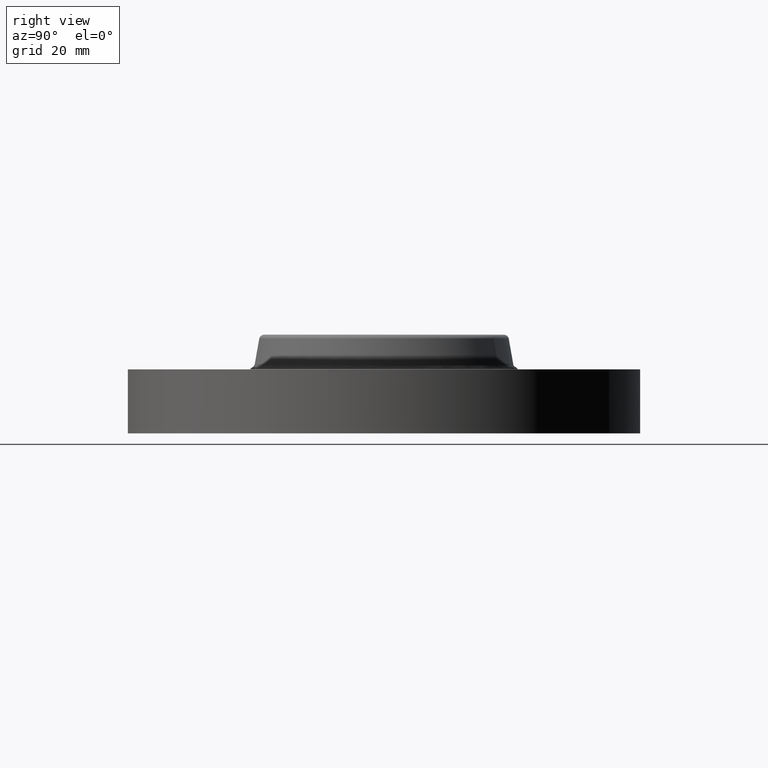
[diagram: clean part render]
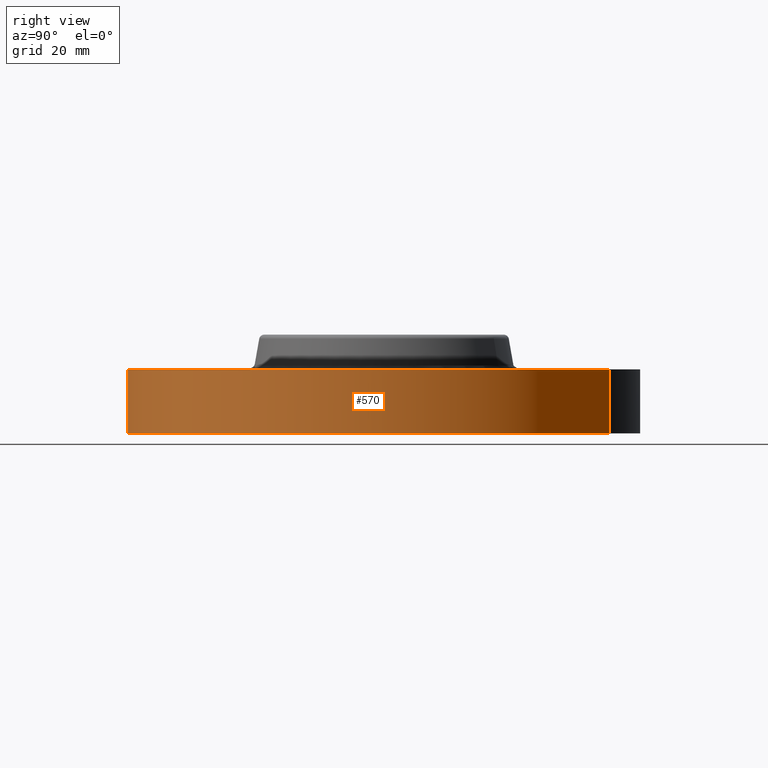
[diagram: same view with one face highlighted and labeled with its STEP entity id]
A machine part, right view. The second image highlights one B-rep face of the part: STEP entity #570.
In plain terms, the highlighted cylindrical surface (partial cylindrical patch) has radius 82.55 mm, axis along (0, 0, -1).
Its self-contained STEP definition (entity closure, byte-faithful):
#181=AXIS2_PLACEMENT_3D('Circle Axis2P3D',#179,#180,$) ;
#543=AXIS2_PLACEMENT_3D('Cylinder Axis2P3D',#540,#541,#542) ;
#554=AXIS2_PLACEMENT_3D('Circle Axis2P3D',#552,#553,$) ;
#179=CARTESIAN_POINT('Axis2P3D Location',(0.,0.,0.)) ;
#183=CARTESIAN_POINT('Vertex',(1.55813300047,2.85214332616,2.79741234551E-016)) ;
#185=CARTESIAN_POINT('Vertex',(-1.55813300047,-2.85214332616,2.79741234551E-016)) ;
#540=CARTESIAN_POINT('Axis2P3D Location',(0.,0.,0.625000000003)) ;
#545=CARTESIAN_POINT('Line Origine',(1.55813300047,2.85214332616,0.405000000002)) ;
#549=CARTESIAN_POINT('Vertex',(1.55813300047,2.85214332616,0.810000000003)) ;
#552=CARTESIAN_POINT('Axis2P3D Location',(0.,0.,0.810000000003)) ;
#556=CARTESIAN_POINT('Vertex',(-1.55813300047,-2.85214332616,0.810000000003)) ;
#559=CARTESIAN_POINT('Line Origine',(-1.55813300047,-2.85214332616,0.405000000002)) ;
#180=DIRECTION('Axis2P3D Direction',(0.,0.,-0.0393700787402)) ;
#541=DIRECTION('Axis2P3D Direction',(0.,0.,-0.0393700787402)) ;
#542=DIRECTION('Axis2P3D XDirection',(-0.0188750212049,-0.0345504945626,0.)) ;
#546=DIRECTION('Vector Direction',(0.,0.,-0.0393700787402)) ;
#553=DIRECTION('Axis2P3D Direction',(0.,0.,-0.0393700787402)) ;
#560=DIRECTION('Vector Direction',(0.,0.,-0.0393700787402)) ;
#547=VECTOR('Line Direction',#546,0.0393700787402) ;
#561=VECTOR('Line Direction',#560,0.0393700787402) ;
#565=ORIENTED_EDGE('',*,*,#187,.F.) ;
#566=ORIENTED_EDGE('',*,*,#551,.T.) ;
#567=ORIENTED_EDGE('',*,*,#558,.T.) ;
#568=ORIENTED_EDGE('',*,*,#563,.F.) ;
#570=ADVANCED_FACE('PartBody',(#569),#544,.T.) ;
#182=CIRCLE('generated circle',#181,3.25000000001) ;
#555=CIRCLE('generated circle',#554,3.25000000001) ;
#544=CYLINDRICAL_SURFACE('generated cylinder',#543,3.25000000001) ;
#187=EDGE_CURVE('',#184,#186,#182,.T.) ;
#551=EDGE_CURVE('',#184,#550,#548,.F.) ;
#558=EDGE_CURVE('',#550,#557,#555,.T.) ;
#563=EDGE_CURVE('',#186,#557,#562,.F.) ;
#564=EDGE_LOOP('',(#565,#566,#567,#568)) ;
#569=FACE_OUTER_BOUND('',#564,.T.) ;
#548=LINE('Line',#545,#547) ;
#562=LINE('Line',#559,#561) ;
#184=VERTEX_POINT('',#183) ;
#186=VERTEX_POINT('',#185) ;
#550=VERTEX_POINT('',#549) ;
#557=VERTEX_POINT('',#556) ;